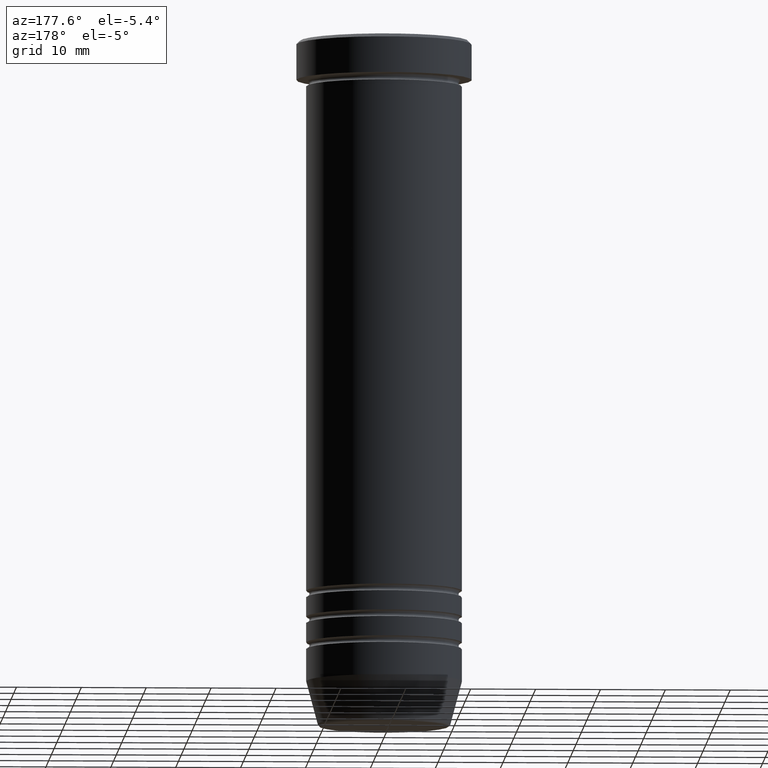
[diagram: clean part render]
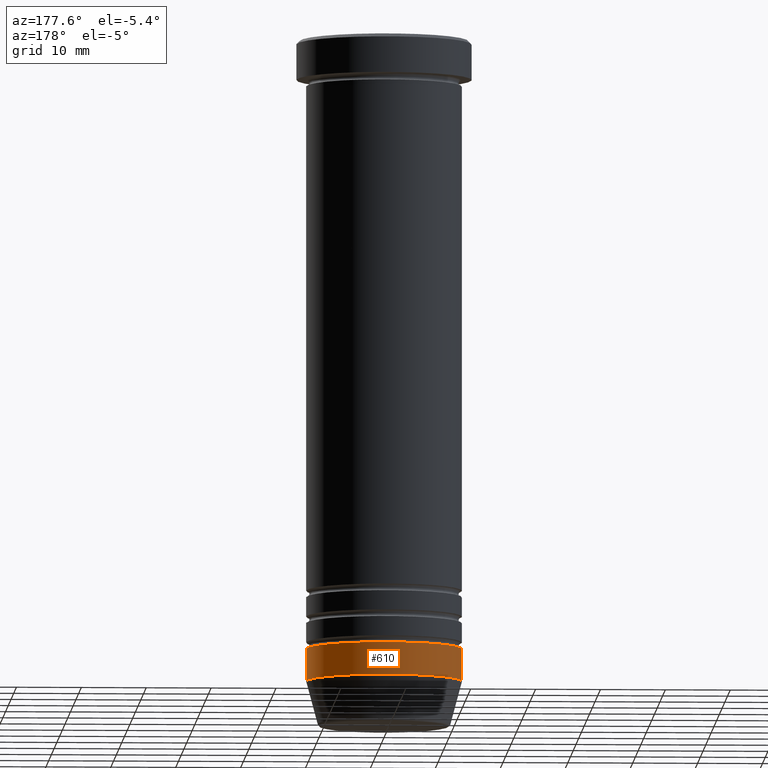
[diagram: same view with one face highlighted and labeled with its STEP entity id]
A machine part, auxiliary view. The second image highlights one B-rep face of the part: STEP entity #610.
In plain terms, the highlighted cylindrical surface (partial cylindrical patch) has radius 12 mm, axis along (-0, -0, 1).
Its self-contained STEP definition (entity closure, byte-faithful):
#30 = LINE ( 'NONE', #1000, #156 ) ;
#54 = DIRECTION ( 'NONE',  ( -0.000000000000000000, -0.000000000000000000, 1.000000000000000000 ) ) ;
#87 = VECTOR ( 'NONE', #1076, 1000.000000000000000 ) ;
#100 = AXIS2_PLACEMENT_3D ( 'NONE', #411, #850, #1136 ) ;
#122 = AXIS2_PLACEMENT_3D ( 'NONE', #734, #208, #562 ) ;
#125 = AXIS2_PLACEMENT_3D ( 'NONE', #832, #1090, #378 ) ;
#147 = VERTEX_POINT ( 'NONE', #522 ) ;
#156 = VECTOR ( 'NONE', #54, 1000.000000000000000 ) ;
#195 = CARTESIAN_POINT ( 'NONE',  ( 12.00000000000000178, 0.000000000000000000, 0.000000000000000000 ) ) ;
#202 = LINE ( 'NONE', #195, #87 ) ;
#208 = DIRECTION ( 'NONE',  ( -0.000000000000000000, -0.000000000000000000, 1.000000000000000000 ) ) ;
#312 = CARTESIAN_POINT ( 'NONE',  ( 12.00000000000000178, 0.000000000000000000, -98.99999999999998579 ) ) ;
#342 = VERTEX_POINT ( 'NONE', #312 ) ;
#344 = CARTESIAN_POINT ( 'NONE',  ( 12.00000000000000178, 0.000000000000000000, -94.00000000000000000 ) ) ;
#350 = EDGE_LOOP ( 'NONE', ( #563, #627, #484, #913 ) ) ;
#378 = DIRECTION ( 'NONE',  ( 1.000000000000000000, 0.000000000000000000, 0.000000000000000000 ) ) ;
#411 = CARTESIAN_POINT ( 'NONE',  ( 0.000000000000000000, 0.000000000000000000, 0.000000000000000000 ) ) ;
#474 = EDGE_CURVE ( 'NONE', #485, #147, #30, .T. ) ;
#484 = ORIENTED_EDGE ( 'NONE', *, *, #999, .F. ) ;
#485 = VERTEX_POINT ( 'NONE', #755 ) ;
#522 = CARTESIAN_POINT ( 'NONE',  ( -12.00000000000000178, 1.469576158976824144E-15, -94.00000000000000000 ) ) ;
#541 = EDGE_CURVE ( 'NONE', #342, #485, #803, .T. ) ;
#562 = DIRECTION ( 'NONE',  ( 1.000000000000000000, 0.000000000000000000, 0.000000000000000000 ) ) ;
#563 = ORIENTED_EDGE ( 'NONE', *, *, #541, .T. ) ;
#594 = CYLINDRICAL_SURFACE ( 'NONE', #100, 12.00000000000000178 ) ;
#610 = ADVANCED_FACE ( 'NONE', ( #1021 ), #594, .T. ) ;
#627 = ORIENTED_EDGE ( 'NONE', *, *, #474, .T. ) ;
#734 = CARTESIAN_POINT ( 'NONE',  ( 0.000000000000000000, 0.000000000000000000, -98.99999999999998579 ) ) ;
#755 = CARTESIAN_POINT ( 'NONE',  ( -12.00000000000000178, 1.469576158976824144E-15, -98.99999999999998579 ) ) ;
#803 = CIRCLE ( 'NONE', #122, 12.00000000000000178 ) ;
#823 = VERTEX_POINT ( 'NONE', #344 ) ;
#832 = CARTESIAN_POINT ( 'NONE',  ( 0.000000000000000000, 0.000000000000000000, -94.00000000000000000 ) ) ;
#850 = DIRECTION ( 'NONE',  ( -0.000000000000000000, -0.000000000000000000, 1.000000000000000000 ) ) ;
#913 = ORIENTED_EDGE ( 'NONE', *, *, #917, .F. ) ;
#917 = EDGE_CURVE ( 'NONE', #342, #823, #202, .T. ) ;
#999 = EDGE_CURVE ( 'NONE', #823, #147, #1107, .T. ) ;
#1000 = CARTESIAN_POINT ( 'NONE',  ( -12.00000000000000178, 1.469576158976824144E-15, 0.000000000000000000 ) ) ;
#1021 = FACE_OUTER_BOUND ( 'NONE', #350, .T. ) ;
#1076 = DIRECTION ( 'NONE',  ( -0.000000000000000000, -0.000000000000000000, 1.000000000000000000 ) ) ;
#1090 = DIRECTION ( 'NONE',  ( -0.000000000000000000, -0.000000000000000000, 1.000000000000000000 ) ) ;
#1107 = CIRCLE ( 'NONE', #125, 12.00000000000000178 ) ;
#1136 = DIRECTION ( 'NONE',  ( 1.000000000000000000, 0.000000000000000000, 0.000000000000000000 ) ) ;